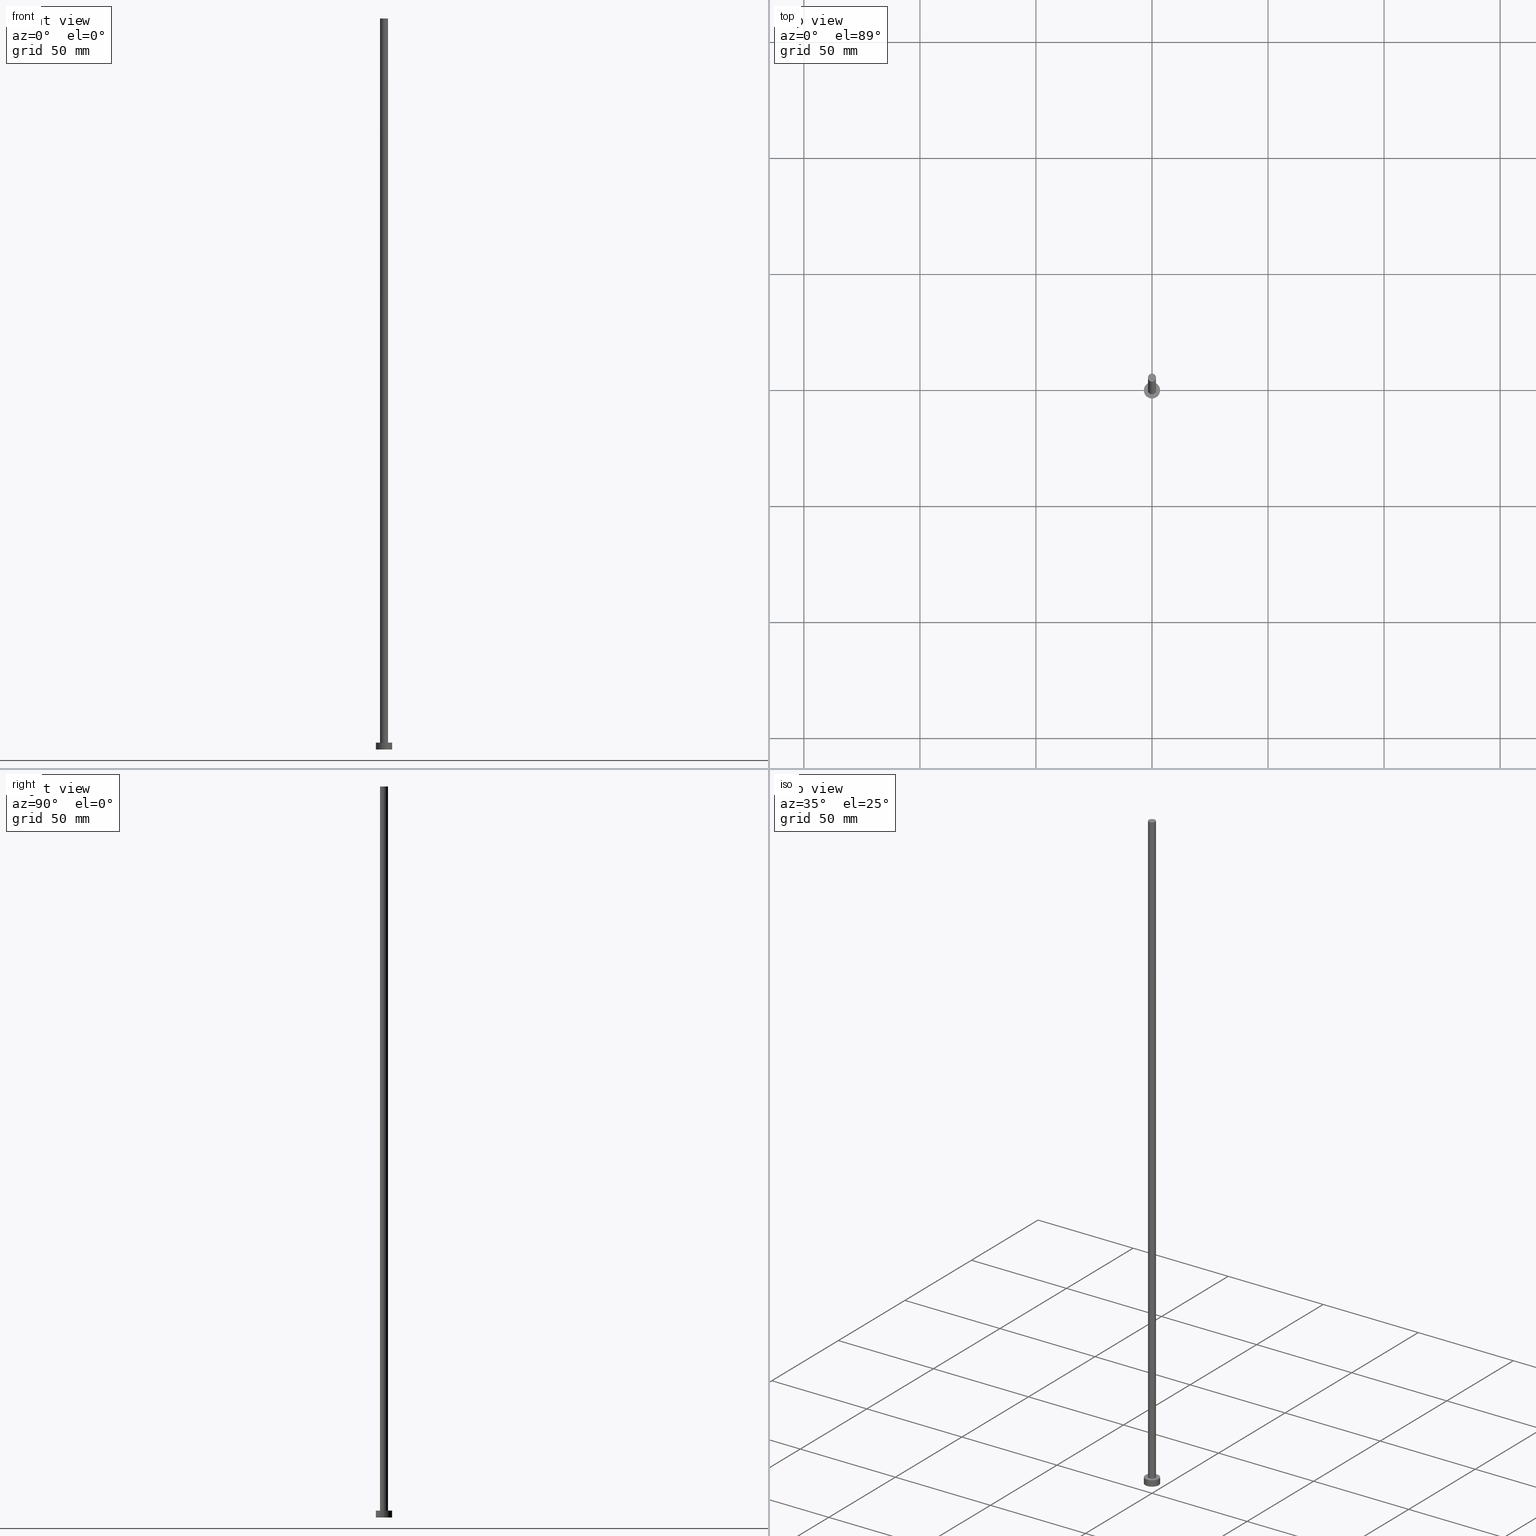
[diagram: canonical four-view strip — front | top / right | iso, engineering-drawing reading convention]
A machine part, canonical four-view strip (front | top / right | iso — engineering-drawing reading convention). The complete STEP part file that produces these views, byte-faithful:
ISO-10303-21;
HEADER;
FILE_DESCRIPTION (( 'STEP AP203' ),
    '1' );
FILE_NAME ('7b20.STEP',
    '2023-02-13T13:58:40',
    ( '' ),
    ( '' ),
    'SwSTEP 2.0',
    'SolidWorks 2019',
    '' );
FILE_SCHEMA (( 'CONFIG_CONTROL_DESIGN' ));
ENDSEC;

DATA;
#1 = CALENDAR_DATE ( 2023, 13, 2 ) ;
#2 = EDGE_LOOP ( 'NONE', ( #74, #38 ) ) ;
#3 = LINE ( 'NONE', #85, #44 ) ;
#4 =( GEOMETRIC_REPRESENTATION_CONTEXT ( 3 ) GLOBAL_UNCERTAINTY_ASSIGNED_CONTEXT ( ( #145 ) ) GLOBAL_UNIT_ASSIGNED_CONTEXT ( ( #107, #221, #41 ) ) REPRESENTATION_CONTEXT ( 'NONE', 'WORKASPACE' ) );
#5 = CYLINDRICAL_SURFACE ( 'NONE', #81, 3.500000000000000444 ) ;
#6 = PERSON ( 'NEUR�EN�', 'NEUR�EN�', 'NEUR�EN�', ('NEUR�EN�'), ('NEUR�EN�'), ('NEUR�EN�') ) ;
#7 = EDGE_LOOP ( 'NONE', ( #99, #9 ) ) ;
#8 = EDGE_CURVE ( 'NONE', #156, #35, #140, .T. ) ;
#9 = ORIENTED_EDGE ( 'NONE', *, *, #154, .F. ) ;
#10 = AXIS2_PLACEMENT_3D ( 'NONE', #255, #133, #131 ) ;
#11 = DIRECTION ( 'NONE',  ( -1.000000000000000000, 0.000000000000000000, 0.000000000000000000 ) ) ;
#12 = CIRCLE ( 'NONE', #24, 1.750000000000000000 ) ;
#13 = DIRECTION ( 'NONE',  ( -1.000000000000000000, 0.000000000000000000, 0.000000000000000000 ) ) ;
#14 = FACE_BOUND ( 'NONE', #211, .T. ) ;
#15 = EDGE_CURVE ( 'NONE', #158, #53, #111, .T. ) ;
#16 = LINE ( 'NONE', #104, #207 ) ;
#17 = AXIS2_PLACEMENT_3D ( 'NONE', #67, #204, #186 ) ;
#18 = LOCAL_TIME ( 14, 58, 40.00000000000000000, #20 ) ;
#19 = DIRECTION ( 'NONE',  ( 1.000000000000000000, 0.000000000000000000, 0.000000000000000000 ) ) ;
#20 = COORDINATED_UNIVERSAL_TIME_OFFSET ( 1, 0, .AHEAD. ) ;
#21 = PERSON_AND_ORGANIZATION ( #6, #119 ) ;
#22 = DIRECTION ( 'NONE',  ( 1.000000000000000000, 0.000000000000000000, 0.000000000000000000 ) ) ;
#23 = APPROVAL_ROLE ( '' ) ;
#24 = AXIS2_PLACEMENT_3D ( 'NONE', #240, #210, #208 ) ;
#25 = COORDINATED_UNIVERSAL_TIME_OFFSET ( 1, 0, .AHEAD. ) ;
#26 = PRODUCT_DEFINITION ( 'NEZN�M�', '', #174, #248 ) ;
#27 = DIRECTION ( 'NONE',  ( 1.000000000000000000, 0.000000000000000000, -0.000000000000000000 ) ) ;
#28 = DIRECTION ( 'NONE',  ( 0.000000000000000000, 0.000000000000000000, 1.000000000000000000 ) ) ;
#29 = APPLICATION_CONTEXT ( 'configuration controlled 3d designs of mechanical parts and assemblies' ) ;
#30 = DIRECTION ( 'NONE',  ( -0.000000000000000000, -0.000000000000000000, -1.000000000000000000 ) ) ;
#31 = LOCAL_TIME ( 14, 58, 40.00000000000000000, #25 ) ;
#32 = DIRECTION ( 'NONE',  ( -0.000000000000000000, -0.000000000000000000, -1.000000000000000000 ) ) ;
#33 = DIRECTION ( 'NONE',  ( -0.000000000000000000, -0.000000000000000000, -1.000000000000000000 ) ) ;
#34 = CC_DESIGN_PERSON_AND_ORGANIZATION_ASSIGNMENT ( #69, #152, ( #174 ) ) ;
#35 = VERTEX_POINT ( 'NONE', #37 ) ;
#36 = ORIENTED_EDGE ( 'NONE', *, *, #188, .T. ) ;
#37 = CARTESIAN_POINT ( 'NONE',  ( 1.750000000000000000, 2.143131898507868297E-16, 3.000000000000000000 ) ) ;
#38 = ORIENTED_EDGE ( 'NONE', *, *, #83, .T. ) ;
#39 = CARTESIAN_POINT ( 'NONE',  ( 0.000000000000000000, 0.000000000000000000, 315.0000000000000000 ) ) ;
#40 = LOCAL_TIME ( 14, 58, 40.00000000000000000, #187 ) ;
#41 =( NAMED_UNIT ( * ) SI_UNIT ( $, .STERADIAN. ) SOLID_ANGLE_UNIT ( ) );
#42 = MECHANICAL_CONTEXT ( 'NONE', #29, 'mechanical' ) ;
#43 = COORDINATED_UNIVERSAL_TIME_OFFSET ( 1, 0, .AHEAD. ) ;
#44 = VECTOR ( 'NONE', #149, 1000.000000000000000 ) ;
#45 = EDGE_CURVE ( 'NONE', #53, #182, #16, .T. ) ;
#46 = DIRECTION ( 'NONE',  ( 0.000000000000000000, 0.000000000000000000, 1.000000000000000000 ) ) ;
#47 = APPLICATION_PROTOCOL_DEFINITION ( 'international standard', 'config_control_design', 1994, #220 ) ;
#48 = CARTESIAN_POINT ( 'NONE',  ( -3.500000000000000444, 0.000000000000000000, 3.000000000000000000 ) ) ;
#49 = APPROVAL_DATE_TIME ( #155, #183 ) ;
#50 = DIRECTION ( 'NONE',  ( -1.000000000000000000, 0.000000000000000000, 0.000000000000000000 ) ) ;
#51 = VECTOR ( 'NONE', #93, 1000.000000000000000 ) ;
#52 = CARTESIAN_POINT ( 'NONE',  ( 0.000000000000000000, 0.000000000000000000, 3.000000000000000000 ) ) ;
#53 = VERTEX_POINT ( 'NONE', #108 ) ;
#54 = ORIENTED_EDGE ( 'NONE', *, *, #157, .F. ) ;
#55 = LOCAL_TIME ( 14, 58, 40.00000000000000000, #169 ) ;
#56 = APPROVAL_PERSON_ORGANIZATION ( #110, #138, #253 ) ;
#57 = ORIENTED_EDGE ( 'NONE', *, *, #61, .T. ) ;
#58 = ORIENTED_EDGE ( 'NONE', *, *, #166, .T. ) ;
#59 = EDGE_LOOP ( 'NONE', ( #80, #54, #57, #226 ) ) ;
#60 = CARTESIAN_POINT ( 'NONE',  ( 1.750000000000000000, 2.143131898507868297E-16, 315.0000000000000000 ) ) ;
#61 = EDGE_CURVE ( 'NONE', #189, #109, #3, .T. ) ;
#62 = EDGE_LOOP ( 'NONE', ( #91, #36 ) ) ;
#63 = PRODUCT_RELATED_PRODUCT_CATEGORY ( 'detail', '', ( #112 ) ) ;
#64 = LINE ( 'NONE', #48, #51 ) ;
#65 = APPROVAL_STATUS ( 'not_yet_approved' ) ;
#66 = ADVANCED_BREP_SHAPE_REPRESENTATION ( '7b20', ( #151, #10 ), #4 ) ;
#67 = CARTESIAN_POINT ( 'NONE',  ( 0.000000000000000000, 0.000000000000000000, 315.0000000000000000 ) ) ;
#68 = CYLINDRICAL_SURFACE ( 'NONE', #142, 3.500000000000000444 ) ;
#69 = PERSON_AND_ORGANIZATION ( #6, #119 ) ;
#70 = CARTESIAN_POINT ( 'NONE',  ( 0.000000000000000000, 0.000000000000000000, 3.000000000000000000 ) ) ;
#71 = DATE_AND_TIME ( #134, #130 ) ;
#72 = PERSON_AND_ORGANIZATION ( #6, #119 ) ;
#73 = DIRECTION ( 'NONE',  ( 0.000000000000000000, 0.000000000000000000, 1.000000000000000000 ) ) ;
#74 = ORIENTED_EDGE ( 'NONE', *, *, #157, .T. ) ;
#75 = AXIS2_PLACEMENT_3D ( 'NONE', #39, #128, #100 ) ;
#76 = CC_DESIGN_SECURITY_CLASSIFICATION ( #228, ( #174 ) ) ;
#77 = ORIENTED_EDGE ( 'NONE', *, *, #15, .F. ) ;
#78 = DIRECTION ( 'NONE',  ( -0.000000000000000000, -0.000000000000000000, -1.000000000000000000 ) ) ;
#79 = CARTESIAN_POINT ( 'NONE',  ( -1.750000000000000000, 0.000000000000000000, 3.000000000000000000 ) ) ;
#80 = ORIENTED_EDGE ( 'NONE', *, *, #8, .F. ) ;
#81 = AXIS2_PLACEMENT_3D ( 'NONE', #244, #213, #13 ) ;
#82 = DIRECTION ( 'NONE',  ( -0.000000000000000000, -0.000000000000000000, -1.000000000000000000 ) ) ;
#83 = EDGE_CURVE ( 'NONE', #156, #189, #201, .T. ) ;
#84 = ORIENTED_EDGE ( 'NONE', *, *, #8, .T. ) ;
#85 = CARTESIAN_POINT ( 'NONE',  ( -1.750000000000000000, 0.000000000000000000, 315.0000000000000000 ) ) ;
#86 = DATE_TIME_ROLE ( 'classification_date' ) ;
#87 = DATE_TIME_ROLE ( 'creation_date' ) ;
#88 = APPROVAL_DATE_TIME ( #153, #105 ) ;
#89 = PRODUCT_DEFINITION_SHAPE ( 'NONE', 'NONE',  #26 ) ;
#90 = PERSON_AND_ORGANIZATION ( #6, #119 ) ;
#91 = ORIENTED_EDGE ( 'NONE', *, *, #15, .T. ) ;
#92 = EDGE_LOOP ( 'NONE', ( #223, #77, #58, #246 ) ) ;
#93 = DIRECTION ( 'NONE',  ( -0.000000000000000000, -0.000000000000000000, -1.000000000000000000 ) ) ;
#94 = CARTESIAN_POINT ( 'NONE',  ( 0.000000000000000000, 0.000000000000000000, 3.000000000000000000 ) ) ;
#95 = CC_DESIGN_APPROVAL ( #138, ( #174 ) ) ;
#96 = ADVANCED_FACE ( 'NONE', ( #218 ), #139, .F. ) ;
#97 = CARTESIAN_POINT ( 'NONE',  ( 0.000000000000000000, 0.000000000000000000, 315.0000000000000000 ) ) ;
#98 = CARTESIAN_POINT ( 'NONE',  ( 0.000000000000000000, 0.000000000000000000, 0.000000000000000000 ) ) ;
#99 = ORIENTED_EDGE ( 'NONE', *, *, #122, .F. ) ;
#100 = DIRECTION ( 'NONE',  ( 1.000000000000000000, 0.000000000000000000, 0.000000000000000000 ) ) ;
#101 = DIRECTION ( 'NONE',  ( 0.000000000000000000, 0.000000000000000000, 1.000000000000000000 ) ) ;
#102 = PLANE ( 'NONE',  #143 ) ;
#103 = CARTESIAN_POINT ( 'NONE',  ( 0.000000000000000000, 0.000000000000000000, 3.000000000000000000 ) ) ;
#104 = CARTESIAN_POINT ( 'NONE',  ( 3.500000000000000444, 4.286263797015737088E-16, 3.000000000000000000 ) ) ;
#105 = APPROVAL ( #65, 'NEUR�EN�' ) ;
#106 = AXIS2_PLACEMENT_3D ( 'NONE', #70, #46, #19 ) ;
#107 =( LENGTH_UNIT ( ) NAMED_UNIT ( * ) SI_UNIT ( .MILLI., .METRE. ) );
#108 = CARTESIAN_POINT ( 'NONE',  ( 3.500000000000000444, 4.286263797015737088E-16, 3.000000000000000000 ) ) ;
#109 = VERTEX_POINT ( 'NONE', #79 ) ;
#110 = PERSON_AND_ORGANIZATION ( #6, #119 ) ;
#111 = CIRCLE ( 'NONE', #245, 3.500000000000000444 ) ;
#112 = PRODUCT ( '7b20', '7b20', '', ( #42 ) ) ;
#113 = ADVANCED_FACE ( 'NONE', ( #148 ), #68, .T. ) ;
#114 = PERSON_AND_ORGANIZATION_ROLE ( 'creator' ) ;
#115 = APPLICATION_PROTOCOL_DEFINITION ( 'international standard', 'config_control_design', 1994, #29 ) ;
#116 = CC_DESIGN_DATE_AND_TIME_ASSIGNMENT ( #71, #86, ( #228 ) ) ;
#117 = CARTESIAN_POINT ( 'NONE',  ( 0.000000000000000000, 0.000000000000000000, 0.000000000000000000 ) ) ;
#118 = EDGE_LOOP ( 'NONE', ( #123, #84, #163, #126 ) ) ;
#119 = ORGANIZATION ( 'NEUR�EN�', 'NEUR�EN�', '' ) ;
#120 = DIRECTION ( 'NONE',  ( -1.000000000000000000, 0.000000000000000000, 0.000000000000000000 ) ) ;
#121 = DIRECTION ( 'NONE',  ( 1.000000000000000000, 0.000000000000000000, 0.000000000000000000 ) ) ;
#122 = EDGE_CURVE ( 'NONE', #124, #182, #225, .T. ) ;
#123 = ORIENTED_EDGE ( 'NONE', *, *, #83, .F. ) ;
#124 = VERTEX_POINT ( 'NONE', #247 ) ;
#125 = DIRECTION ( 'NONE',  ( 0.000000000000000000, 0.000000000000000000, 1.000000000000000000 ) ) ;
#126 = ORIENTED_EDGE ( 'NONE', *, *, #61, .F. ) ;
#127 = CC_DESIGN_PERSON_AND_ORGANIZATION_ASSIGNMENT ( #90, #222, ( #112 ) ) ;
#128 = DIRECTION ( 'NONE',  ( 0.000000000000000000, 0.000000000000000000, 1.000000000000000000 ) ) ;
#129 = CIRCLE ( 'NONE', #159, 3.500000000000000444 ) ;
#130 = LOCAL_TIME ( 14, 58, 40.00000000000000000, #43 ) ;
#131 = DIRECTION ( 'NONE',  ( 1.000000000000000000, 0.000000000000000000, 0.000000000000000000 ) ) ;
#132 = CYLINDRICAL_SURFACE ( 'NONE', #232, 1.750000000000000000 ) ;
#133 = DIRECTION ( 'NONE',  ( 0.000000000000000000, 0.000000000000000000, 1.000000000000000000 ) ) ;
#134 = CALENDAR_DATE ( 2023, 13, 2 ) ;
#135 = DATE_AND_TIME ( #1, #55 ) ;
#136 = FACE_OUTER_BOUND ( 'NONE', #162, .T. ) ;
#137 = SHAPE_DEFINITION_REPRESENTATION ( #89, #66 ) ;
#138 = APPROVAL ( #205, 'NEUR�EN�' ) ;
#139 = PLANE ( 'NONE',  #173 ) ;
#140 = LINE ( 'NONE', #60, #196 ) ;
#141 = PLANE ( 'NONE',  #227 ) ;
#142 = AXIS2_PLACEMENT_3D ( 'NONE', #94, #32, #11 ) ;
#143 = AXIS2_PLACEMENT_3D ( 'NONE', #233, #224, #27 ) ;
#144 = CC_DESIGN_APPROVAL ( #105, ( #26 ) ) ;
#145 = UNCERTAINTY_MEASURE_WITH_UNIT (LENGTH_MEASURE( 1.000000000000000082E-05 ), #107, 'distance_accuracy_value', 'NONE');
#146 = CIRCLE ( 'NONE', #106, 3.500000000000000444 ) ;
#147 = ADVANCED_FACE ( 'NONE', ( #164 ), #141, .T. ) ;
#148 = FACE_OUTER_BOUND ( 'NONE', #92, .T. ) ;
#149 = DIRECTION ( 'NONE',  ( -0.000000000000000000, -0.000000000000000000, -1.000000000000000000 ) ) ;
#150 = FACE_OUTER_BOUND ( 'NONE', #59, .T. ) ;
#151 = MANIFOLD_SOLID_BREP ( 'P�idat vysunut�m3', #216 ) ;
#152 = PERSON_AND_ORGANIZATION_ROLE ( 'design_supplier' ) ;
#153 = DATE_AND_TIME ( #239, #31 ) ;
#154 = EDGE_CURVE ( 'NONE', #182, #124, #129, .T. ) ;
#155 = DATE_AND_TIME ( #170, #40 ) ;
#156 = VERTEX_POINT ( 'NONE', #231 ) ;
#157 = EDGE_CURVE ( 'NONE', #189, #156, #190, .T. ) ;
#158 = VERTEX_POINT ( 'NONE', #180 ) ;
#159 = AXIS2_PLACEMENT_3D ( 'NONE', #117, #101, #181 ) ;
#160 = DIRECTION ( 'NONE',  ( 0.000000000000000000, 0.000000000000000000, 1.000000000000000000 ) ) ;
#161 = APPROVAL_PERSON_ORGANIZATION ( #237, #183, #23 ) ;
#162 = EDGE_LOOP ( 'NONE', ( #250, #209, #192, #194 ) ) ;
#163 = ORIENTED_EDGE ( 'NONE', *, *, #195, .T. ) ;
#164 = FACE_OUTER_BOUND ( 'NONE', #2, .T. ) ;
#165 = DIRECTION ( 'NONE',  ( 1.000000000000000000, 0.000000000000000000, -0.000000000000000000 ) ) ;
#166 = EDGE_CURVE ( 'NONE', #158, #124, #64, .T. ) ;
#167 = PERSON_AND_ORGANIZATION ( #6, #119 ) ;
#168 = CIRCLE ( 'NONE', #217, 1.750000000000000000 ) ;
#169 = COORDINATED_UNIVERSAL_TIME_OFFSET ( 1, 0, .AHEAD. ) ;
#170 = CALENDAR_DATE ( 2023, 13, 2 ) ;
#171 = ADVANCED_FACE ( 'NONE', ( #150 ), #132, .T. ) ;
#172 = PERSON_AND_ORGANIZATION_ROLE ( 'creator' ) ;
#173 = AXIS2_PLACEMENT_3D ( 'NONE', #176, #73, #165 ) ;
#174 = PRODUCT_DEFINITION_FORMATION_WITH_SPECIFIED_SOURCE ( 'LIBOVOLN�', '', #112, .NOT_KNOWN. ) ;
#175 = CALENDAR_DATE ( 2023, 13, 2 ) ;
#176 = CARTESIAN_POINT ( 'NONE',  ( 0.000000000000000000, 0.000000000000000000, 0.000000000000000000 ) ) ;
#177 = ADVANCED_FACE ( 'NONE', ( #14, #229 ), #102, .T. ) ;
#178 = CARTESIAN_POINT ( 'NONE',  ( 0.000000000000000000, 0.000000000000000000, 315.0000000000000000 ) ) ;
#179 = CC_DESIGN_DATE_AND_TIME_ASSIGNMENT ( #185, #87, ( #26 ) ) ;
#180 = CARTESIAN_POINT ( 'NONE',  ( -3.500000000000000444, 0.000000000000000000, 3.000000000000000000 ) ) ;
#181 = DIRECTION ( 'NONE',  ( 1.000000000000000000, 0.000000000000000000, 0.000000000000000000 ) ) ;
#182 = VERTEX_POINT ( 'NONE', #242 ) ;
#183 = APPROVAL ( #202, 'NEUR�EN�' ) ;
#184 = PERSON_AND_ORGANIZATION ( #6, #119 ) ;
#185 = DATE_AND_TIME ( #175, #18 ) ;
#186 = DIRECTION ( 'NONE',  ( 1.000000000000000000, 0.000000000000000000, 0.000000000000000000 ) ) ;
#187 = COORDINATED_UNIVERSAL_TIME_OFFSET ( 1, 0, .AHEAD. ) ;
#188 = EDGE_CURVE ( 'NONE', #53, #158, #146, .T. ) ;
#189 = VERTEX_POINT ( 'NONE', #254 ) ;
#190 = CIRCLE ( 'NONE', #75, 1.750000000000000000 ) ;
#191 = CC_DESIGN_APPROVAL ( #183, ( #228 ) ) ;
#192 = ORIENTED_EDGE ( 'NONE', *, *, #154, .T. ) ;
#193 = EDGE_CURVE ( 'NONE', #109, #35, #12, .T. ) ;
#194 = ORIENTED_EDGE ( 'NONE', *, *, #166, .F. ) ;
#195 = EDGE_CURVE ( 'NONE', #35, #109, #168, .T. ) ;
#196 = VECTOR ( 'NONE', #78, 1000.000000000000000 ) ;
#197 = CC_DESIGN_PERSON_AND_ORGANIZATION_ASSIGNMENT ( #184, #219, ( #228 ) ) ;
#198 = DIRECTION ( 'NONE',  ( 0.000000000000000000, 0.000000000000000000, 1.000000000000000000 ) ) ;
#199 = APPROVAL_ROLE ( '' ) ;
#200 = CYLINDRICAL_SURFACE ( 'NONE', #203, 1.750000000000000000 ) ;
#201 = CIRCLE ( 'NONE', #17, 1.750000000000000000 ) ;
#202 = APPROVAL_STATUS ( 'not_yet_approved' ) ;
#203 = AXIS2_PLACEMENT_3D ( 'NONE', #178, #30, #50 ) ;
#204 = DIRECTION ( 'NONE',  ( 0.000000000000000000, 0.000000000000000000, 1.000000000000000000 ) ) ;
#205 = APPROVAL_STATUS ( 'not_yet_approved' ) ;
#206 = CARTESIAN_POINT ( 'NONE',  ( 0.000000000000000000, 0.000000000000000000, 315.0000000000000000 ) ) ;
#207 = VECTOR ( 'NONE', #82, 1000.000000000000000 ) ;
#208 = DIRECTION ( 'NONE',  ( 1.000000000000000000, 0.000000000000000000, 0.000000000000000000 ) ) ;
#209 = ORIENTED_EDGE ( 'NONE', *, *, #45, .T. ) ;
#210 = DIRECTION ( 'NONE',  ( 0.000000000000000000, 0.000000000000000000, 1.000000000000000000 ) ) ;
#211 = EDGE_LOOP ( 'NONE', ( #241, #215 ) ) ;
#212 = DIRECTION ( 'NONE',  ( 1.000000000000000000, 0.000000000000000000, 0.000000000000000000 ) ) ;
#213 = DIRECTION ( 'NONE',  ( -0.000000000000000000, -0.000000000000000000, -1.000000000000000000 ) ) ;
#214 = CC_DESIGN_PERSON_AND_ORGANIZATION_ASSIGNMENT ( #167, #114, ( #26 ) ) ;
#215 = ORIENTED_EDGE ( 'NONE', *, *, #195, .F. ) ;
#216 = CLOSED_SHELL ( 'NONE', ( #249, #230, #113, #177, #96, #171, #147 ) ) ;
#217 = AXIS2_PLACEMENT_3D ( 'NONE', #52, #198, #22 ) ;
#218 = FACE_OUTER_BOUND ( 'NONE', #7, .T. ) ;
#219 = PERSON_AND_ORGANIZATION_ROLE ( 'classification_officer' ) ;
#220 = APPLICATION_CONTEXT ( 'configuration controlled 3d designs of mechanical parts and assemblies' ) ;
#221 =( NAMED_UNIT ( * ) PLANE_ANGLE_UNIT ( ) SI_UNIT ( $, .RADIAN. ) );
#222 = PERSON_AND_ORGANIZATION_ROLE ( 'design_owner' ) ;
#223 = ORIENTED_EDGE ( 'NONE', *, *, #45, .F. ) ;
#224 = DIRECTION ( 'NONE',  ( 0.000000000000000000, 0.000000000000000000, 1.000000000000000000 ) ) ;
#225 = CIRCLE ( 'NONE', #252, 3.500000000000000444 ) ;
#226 = ORIENTED_EDGE ( 'NONE', *, *, #193, .T. ) ;
#227 = AXIS2_PLACEMENT_3D ( 'NONE', #206, #28, #243 ) ;
#228 = SECURITY_CLASSIFICATION ( '', '', #236 ) ;
#229 = FACE_OUTER_BOUND ( 'NONE', #62, .T. ) ;
#230 = ADVANCED_FACE ( 'NONE', ( #136 ), #5, .T. ) ;
#231 = CARTESIAN_POINT ( 'NONE',  ( 1.750000000000000000, 2.143131898507868297E-16, 315.0000000000000000 ) ) ;
#232 = AXIS2_PLACEMENT_3D ( 'NONE', #97, #33, #120 ) ;
#233 = CARTESIAN_POINT ( 'NONE',  ( 0.000000000000000000, 0.000000000000000000, 3.000000000000000000 ) ) ;
#234 = FACE_OUTER_BOUND ( 'NONE', #118, .T. ) ;
#235 = APPROVAL_DATE_TIME ( #135, #138 ) ;
#236 = SECURITY_CLASSIFICATION_LEVEL ( 'unclassified' ) ;
#237 = PERSON_AND_ORGANIZATION ( #6, #119 ) ;
#238 = CC_DESIGN_PERSON_AND_ORGANIZATION_ASSIGNMENT ( #72, #172, ( #174 ) ) ;
#239 = CALENDAR_DATE ( 2023, 13, 2 ) ;
#240 = CARTESIAN_POINT ( 'NONE',  ( 0.000000000000000000, 0.000000000000000000, 3.000000000000000000 ) ) ;
#241 = ORIENTED_EDGE ( 'NONE', *, *, #193, .F. ) ;
#242 = CARTESIAN_POINT ( 'NONE',  ( 3.500000000000000444, 4.286263797015737088E-16, 0.000000000000000000 ) ) ;
#243 = DIRECTION ( 'NONE',  ( 1.000000000000000000, 0.000000000000000000, -0.000000000000000000 ) ) ;
#244 = CARTESIAN_POINT ( 'NONE',  ( 0.000000000000000000, 0.000000000000000000, 3.000000000000000000 ) ) ;
#245 = AXIS2_PLACEMENT_3D ( 'NONE', #103, #125, #212 ) ;
#246 = ORIENTED_EDGE ( 'NONE', *, *, #122, .T. ) ;
#247 = CARTESIAN_POINT ( 'NONE',  ( -3.500000000000000444, 0.000000000000000000, 0.000000000000000000 ) ) ;
#248 = DESIGN_CONTEXT ( 'detailed design', #220, 'design' ) ;
#249 = ADVANCED_FACE ( 'NONE', ( #234 ), #200, .T. ) ;
#250 = ORIENTED_EDGE ( 'NONE', *, *, #188, .F. ) ;
#251 = APPROVAL_PERSON_ORGANIZATION ( #21, #105, #199 ) ;
#252 = AXIS2_PLACEMENT_3D ( 'NONE', #98, #160, #121 ) ;
#253 = APPROVAL_ROLE ( '' ) ;
#254 = CARTESIAN_POINT ( 'NONE',  ( -1.750000000000000000, 0.000000000000000000, 315.0000000000000000 ) ) ;
#255 = CARTESIAN_POINT ( 'NONE',  ( 0.000000000000000000, 0.000000000000000000, 0.000000000000000000 ) ) ;
ENDSEC;
END-ISO-10303-21;
